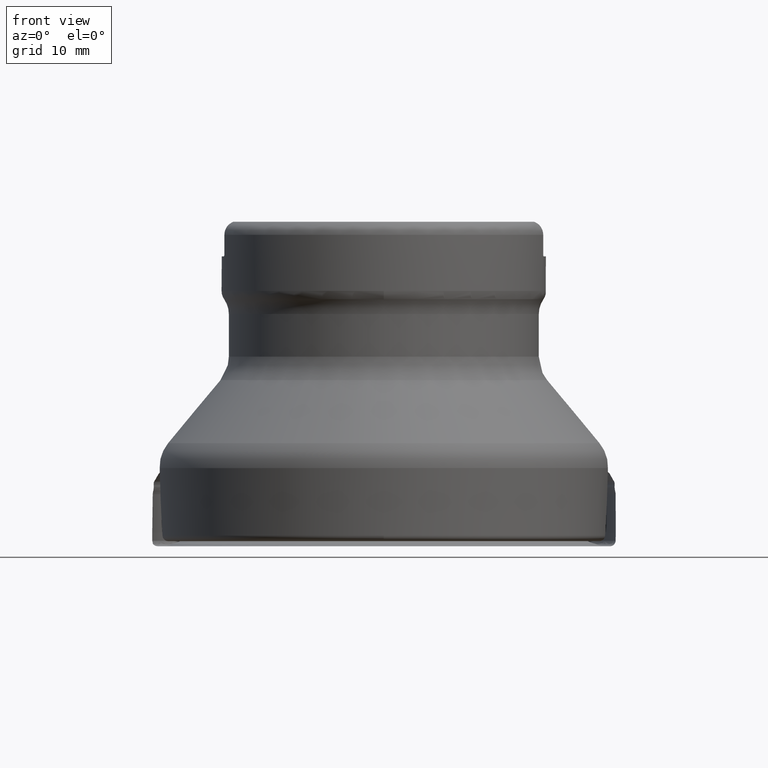
[diagram: clean part render]
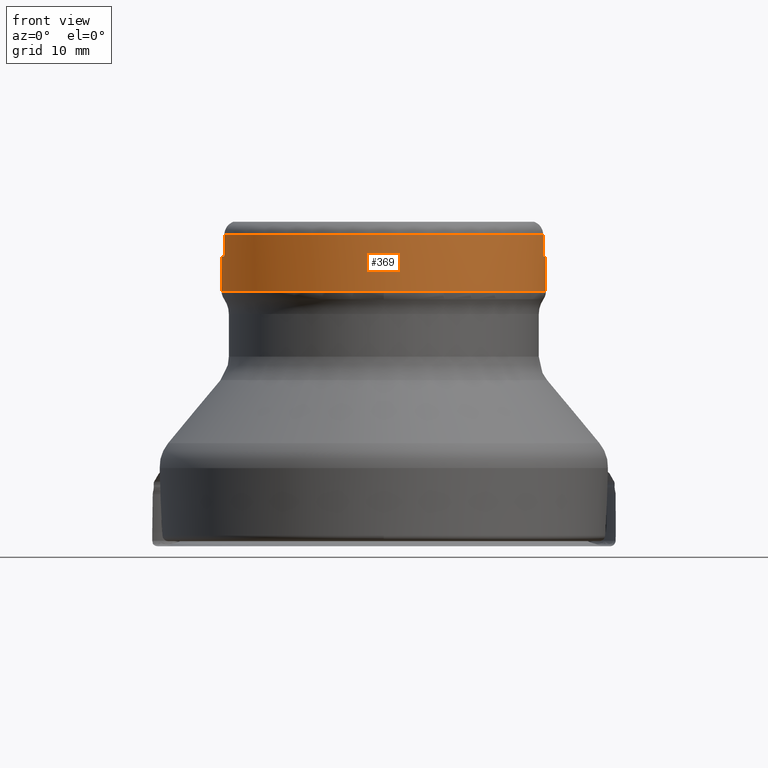
[diagram: same view with one face highlighted and labeled with its STEP entity id]
A machine part, front view. The second image highlights one B-rep face of the part: STEP entity #369.
In plain terms, the highlighted cylindrical surface (bore or boss wall) has radius 22.225 mm, axis along (0, -0, -1).
Its self-contained STEP definition (entity closure, byte-faithful):
#158=CYLINDRICAL_SURFACE('',#1218,22.225);
#168=FACE_BOUND('',#482,.T.);
#169=FACE_BOUND('',#483,.T.);
#315=LINE('',#1988,#342);
#316=LINE('',#2026,#343);
#317=LINE('',#2027,#344);
#318=LINE('',#2065,#345);
#342=VECTOR('',#1370,1.);
#343=VECTOR('',#1373,1.);
#344=VECTOR('',#1374,1.);
#345=VECTOR('',#1377,1.);
#369=ADVANCED_FACE('',(#168,#169),#158,.T.);
#482=EDGE_LOOP('',(#711));
#483=EDGE_LOOP('',(#712,#713,#714,#715,#716,#717,#718,#719,#720,#721,#722,
#723));
#605=CIRCLE('',#1196,22.225);
#607=CIRCLE('',#1199,22.225);
#612=CIRCLE('',#1215,22.225);
#613=CIRCLE('',#1216,22.225);
#614=CIRCLE('',#1217,22.225);
#711=ORIENTED_EDGE('',*,*,#1038,.T.);
#712=ORIENTED_EDGE('',*,*,#1039,.F.);
#713=ORIENTED_EDGE('',*,*,#1040,.T.);
#714=ORIENTED_EDGE('',*,*,#1041,.F.);
#715=ORIENTED_EDGE('',*,*,#1042,.T.);
#716=ORIENTED_EDGE('',*,*,#1043,.F.);
#717=ORIENTED_EDGE('',*,*,#1016,.T.);
#718=ORIENTED_EDGE('',*,*,#1044,.F.);
#719=ORIENTED_EDGE('',*,*,#1045,.T.);
#720=ORIENTED_EDGE('',*,*,#1046,.F.);
#721=ORIENTED_EDGE('',*,*,#1047,.T.);
#722=ORIENTED_EDGE('',*,*,#1048,.F.);
#723=ORIENTED_EDGE('',*,*,#1010,.T.);
#913=VERTEX_POINT('',#1876);
#914=VERTEX_POINT('',#1878);
#919=VERTEX_POINT('',#1919);
#920=VERTEX_POINT('',#1921);
#933=VERTEX_POINT('',#1987);
#934=VERTEX_POINT('',#1989);
#935=VERTEX_POINT('',#2006);
#936=VERTEX_POINT('',#2008);
#937=VERTEX_POINT('',#2025);
#938=VERTEX_POINT('',#2028);
#939=VERTEX_POINT('',#2045);
#940=VERTEX_POINT('',#2047);
#941=VERTEX_POINT('',#2064);
#1010=EDGE_CURVE('',#914,#913,#605,.T.);
#1016=EDGE_CURVE('',#920,#919,#607,.T.);
#1038=EDGE_CURVE('',#933,#933,#612,.T.);
#1039=EDGE_CURVE('',#934,#913,#315,.T.);
#1040=EDGE_CURVE('',#934,#935,#1161,.T.);
#1041=EDGE_CURVE('',#936,#935,#613,.T.);
#1042=EDGE_CURVE('',#936,#937,#1162,.T.);
#1043=EDGE_CURVE('',#920,#937,#316,.T.);
#1044=EDGE_CURVE('',#938,#919,#317,.T.);
#1045=EDGE_CURVE('',#938,#939,#1163,.T.);
#1046=EDGE_CURVE('',#940,#939,#614,.T.);
#1047=EDGE_CURVE('',#940,#941,#1164,.T.);
#1048=EDGE_CURVE('',#914,#941,#318,.T.);
#1161=B_SPLINE_CURVE_WITH_KNOTS('',3,(#1990,#1991,#1992,#1993,#1994,#1995,
#1996,#1997,#1998,#1999,#2000,#2001,#2002,#2003,#2004,#2005),
 .UNSPECIFIED.,.F.,.F.,(4,3,3,3,3,4),(0.,0.210472364967233,0.42083381576524,
0.632936760626975,0.84860430323185,1.),.UNSPECIFIED.);
#1162=B_SPLINE_CURVE_WITH_KNOTS('',3,(#2009,#2010,#2011,#2012,#2013,#2014,
#2015,#2016,#2017,#2018,#2019,#2020,#2021,#2022,#2023,#2024),
 .UNSPECIFIED.,.F.,.F.,(4,3,3,3,3,4),(0.,0.219175651858253,0.438420919236842,
0.656459471023132,0.871147037842588,1.),.UNSPECIFIED.);
#1163=B_SPLINE_CURVE_WITH_KNOTS('',3,(#2029,#2030,#2031,#2032,#2033,#2034,
#2035,#2036,#2037,#2038,#2039,#2040,#2041,#2042,#2043,#2044),
 .UNSPECIFIED.,.F.,.F.,(4,3,3,3,3,4),(0.,0.210472364967233,0.42083381576524,
0.632936760626974,0.848604303231861,1.),.UNSPECIFIED.);
#1164=B_SPLINE_CURVE_WITH_KNOTS('',3,(#2048,#2049,#2050,#2051,#2052,#2053,
#2054,#2055,#2056,#2057,#2058,#2059,#2060,#2061,#2062,#2063),
 .UNSPECIFIED.,.F.,.F.,(4,3,3,3,3,4),(0.,0.219175651858252,0.438420919236837,
0.656459471023132,0.871147037842588,1.),.UNSPECIFIED.);
#1196=AXIS2_PLACEMENT_3D('',#1877,#1322,#1323);
#1199=AXIS2_PLACEMENT_3D('',#1920,#1328,#1329);
#1215=AXIS2_PLACEMENT_3D('',#1986,#1368,#1369);
#1216=AXIS2_PLACEMENT_3D('',#2007,#1371,#1372);
#1217=AXIS2_PLACEMENT_3D('',#2046,#1375,#1376);
#1218=AXIS2_PLACEMENT_3D('',#2066,#1378,#1379);
#1322=DIRECTION('',(0.,-1.17145536458252E-15,-1.));
#1323=DIRECTION('',(0.,1.,-1.24884479710366E-15));
#1328=DIRECTION('',(0.,-1.17145536458252E-15,-1.));
#1329=DIRECTION('',(0.,1.,-1.24884479710366E-15));
#1368=DIRECTION('',(0.,1.17145536458252E-15,1.));
#1369=DIRECTION('',(0.,-1.,1.24884479710366E-15));
#1370=DIRECTION('',(0.,1.17145536458252E-15,1.));
#1371=DIRECTION('',(0.,1.17145536458252E-15,1.));
#1372=DIRECTION('',(0.,-1.,1.24884479710366E-15));
#1373=DIRECTION('',(0.,-1.17145536458252E-15,-1.));
#1374=DIRECTION('',(0.,1.17145536458252E-15,1.));
#1375=DIRECTION('',(0.,1.17145536458252E-15,1.));
#1376=DIRECTION('',(0.,-1.,1.24884479710366E-15));
#1377=DIRECTION('',(0.,-1.17145536458252E-15,-1.));
#1378=DIRECTION('',(0.,-1.17145536458252E-15,-1.));
#1379=DIRECTION('',(0.,1.,-1.17145536458252E-15));
#1876=CARTESIAN_POINT('',(-21.8293380568445,-4.17499999999995,42.65));
#1877=CARTESIAN_POINT('',(0.,4.99625712994447E-14,42.65));
#1878=CARTESIAN_POINT('',(21.8293380568445,-4.17499999999995,42.65));
#1919=CARTESIAN_POINT('',(21.8293380568445,4.17500000000005,42.65));
#1920=CARTESIAN_POINT('',(0.,4.99625712994447E-14,42.65));
#1921=CARTESIAN_POINT('',(-21.8293380568461,4.17500000000005,42.6500000000002));
#1986=CARTESIAN_POINT('',(0.,4.09756660999428E-14,34.9784271247462));
#1987=CARTESIAN_POINT('',(0.,-22.225,34.9784271247462));
#1988=CARTESIAN_POINT('',(-21.8293380568445,-4.175,5.27760477534295E-15));
#1989=CARTESIAN_POINT('',(-21.8293380568445,-4.17499999999995,40.1));
#1990=CARTESIAN_POINT('',(-21.8293380568445,-4.17499999999995,40.1));
#1991=CARTESIAN_POINT('',(-21.8293380568445,-4.17499999999995,40.0558065689365));
#1992=CARTESIAN_POINT('',(-21.8307835969848,-4.16746058414633,40.0110042944692));
#1993=CARTESIAN_POINT('',(-21.8335246985364,-4.15304999228268,39.9693163999003));
#1994=CARTESIAN_POINT('',(-21.8362649932676,-4.13864364205675,39.927640775816));
#1995=CARTESIAN_POINT('',(-21.8403708574228,-4.11698721111088,39.8879363501114));
#1996=CARTESIAN_POINT('',(-21.8454369819115,-4.08992763619782,39.8533817039252));
#1997=CARTESIAN_POINT('',(-21.8505454572765,-4.06264185351728,39.8185381940229));
#1998=CARTESIAN_POINT('',(-21.8567636399886,-4.02913407276355,39.7879824408914));
#1999=CARTESIAN_POINT('',(-21.8635161586172,-3.99215307595861,39.7640765837253));
#2000=CARTESIAN_POINT('',(-21.8703807036238,-3.95455855294867,39.7397741209754));
#2001=CARTESIAN_POINT('',(-21.8779802340845,-3.9123582400158,39.7216813922993));
#2002=CARTESIAN_POINT('',(-21.8856499668951,-3.86897279992278,39.7111952766817));
#2003=CARTESIAN_POINT('',(-21.8910719580784,-3.83830217821053,39.7037822900979));
#2004=CARTESIAN_POINT('',(-21.8966166250354,-3.80655098660398,39.7));
#2005=CARTESIAN_POINT('',(-21.9020546981328,-3.77499999999995,39.7));
#2006=CARTESIAN_POINT('',(-21.9020546981328,-3.77499999999995,39.7));
#2007=CARTESIAN_POINT('',(0.,4.65067779739262E-14,39.7));
#2008=CARTESIAN_POINT('',(-21.9020546981328,3.77500000000005,39.7));
#2009=CARTESIAN_POINT('',(-21.9020546981328,3.77500000000005,39.7));
#2010=CARTESIAN_POINT('',(-21.8942378183556,3.82035251084737,39.7));
#2011=CARTESIAN_POINT('',(-21.8861646129708,3.86630445453137,39.7079246413321));
#2012=CARTESIAN_POINT('',(-21.8785250084134,3.9090623500054,39.7231349229352));
#2013=CARTESIAN_POINT('',(-21.8708841158101,3.95182745450844,39.7383477690088));
#2014=CARTESIAN_POINT('',(-21.8634663771173,3.99258709417775,39.7612785864427));
#2015=CARTESIAN_POINT('',(-21.8569603388711,4.0278914763207,39.7900872684055));
#2016=CARTESIAN_POINT('',(-21.8504910361036,4.0629965169704,39.8187332859812));
#2017=CARTESIAN_POINT('',(-21.8447454840731,4.0936896898005,39.854008252674));
#2018=CARTESIAN_POINT('',(-21.8403011683012,4.11726485398984,39.8929860639393));
#2019=CARTESIAN_POINT('',(-21.8359245676766,4.14048081874465,39.9313699956602));
#2020=CARTESIAN_POINT('',(-21.8326910223772,4.15744091253673,39.9744319116725));
#2021=CARTESIAN_POINT('',(-21.8309401715052,4.16661448038576,40.0185254717582));
#2022=CARTESIAN_POINT('',(-21.82987941277,4.17217231651238,40.0452396995513));
#2023=CARTESIAN_POINT('',(-21.8293380568447,4.17500000000073,40.0726931378936));
#2024=CARTESIAN_POINT('',(-21.8293380568447,4.17500000000074,40.0999999999999));
#2025=CARTESIAN_POINT('',(-21.8293380568445,4.17500000000005,40.1));
#2026=CARTESIAN_POINT('',(-21.8293380568445,4.17500000000001,-4.50404751892114E-15));
#2027=CARTESIAN_POINT('',(21.8293380568445,4.17500000000001,-4.50404751892114E-15));
#2028=CARTESIAN_POINT('',(21.8293380568445,4.17500000000005,40.1));
#2029=CARTESIAN_POINT('',(21.8293380568445,4.17500000000005,40.1));
#2030=CARTESIAN_POINT('',(21.8293380568445,4.17500000000005,40.0558065689365));
#2031=CARTESIAN_POINT('',(21.8307835969848,4.16746058414643,40.0110042944691));
#2032=CARTESIAN_POINT('',(21.8335246985364,4.15304999228278,39.9693163999003));
#2033=CARTESIAN_POINT('',(21.8362649932676,4.13864364205685,39.927640775816));
#2034=CARTESIAN_POINT('',(21.8403708574227,4.11698721111098,39.8879363501113));
#2035=CARTESIAN_POINT('',(21.8454369819115,4.08992763619792,39.8533817039252));
#2036=CARTESIAN_POINT('',(21.8505454572765,4.06264185351738,39.8185381940228));
#2037=CARTESIAN_POINT('',(21.8567636399886,4.02913407276365,39.7879824408913));
#2038=CARTESIAN_POINT('',(21.8635161586172,3.99215307595871,39.7640765837252));
#2039=CARTESIAN_POINT('',(21.8703807036238,3.95455855294877,39.7397741209754));
#2040=CARTESIAN_POINT('',(21.8779802340845,3.9123582400159,39.7216813922993));
#2041=CARTESIAN_POINT('',(21.8856499668951,3.86897279992287,39.7111952766816));
#2042=CARTESIAN_POINT('',(21.8910719580784,3.83830217821063,39.7037822900978));
#2043=CARTESIAN_POINT('',(21.8966166250354,3.80655098660407,39.7));
#2044=CARTESIAN_POINT('',(21.9020546981328,3.77500000000005,39.7));
#2045=CARTESIAN_POINT('',(21.9020546981328,3.77500000000005,39.7));
#2046=CARTESIAN_POINT('',(0.,4.65067779739262E-14,39.7));
#2047=CARTESIAN_POINT('',(21.9020546981328,-3.77499999999995,39.7));
#2048=CARTESIAN_POINT('',(21.9020546981328,-3.77499999999995,39.7));
#2049=CARTESIAN_POINT('',(21.8942378183556,-3.82035251084727,39.7));
#2050=CARTESIAN_POINT('',(21.8861646129708,-3.86630445453127,39.7079246413321));
#2051=CARTESIAN_POINT('',(21.8785250084134,-3.9090623500053,39.7231349229352));
#2052=CARTESIAN_POINT('',(21.8708841158101,-3.95182745450833,39.7383477690088));
#2053=CARTESIAN_POINT('',(21.8634663771173,-3.99258709417765,39.7612785864427));
#2054=CARTESIAN_POINT('',(21.8569603388711,-4.0278914763206,39.7900872684055));
#2055=CARTESIAN_POINT('',(21.8504910361036,-4.0629965169703,39.8187332859812));
#2056=CARTESIAN_POINT('',(21.8447454840731,-4.0936896898004,39.854008252674));
#2057=CARTESIAN_POINT('',(21.8403011683012,-4.11726485398974,39.8929860639393));
#2058=CARTESIAN_POINT('',(21.8359245676766,-4.14048081874456,39.9313699956602));
#2059=CARTESIAN_POINT('',(21.8326910223772,-4.15744091253663,39.9744319116725));
#2060=CARTESIAN_POINT('',(21.8309401715052,-4.16661448038566,40.0185254717582));
#2061=CARTESIAN_POINT('',(21.82987941277,-4.17217231651228,40.0452396995513));
#2062=CARTESIAN_POINT('',(21.8293380568447,-4.17500000000063,40.0726931378936));
#2063=CARTESIAN_POINT('',(21.8293380568447,-4.17500000000064,40.0999999999999));
#2064=CARTESIAN_POINT('',(21.8293380568445,-4.17499999999995,40.1));
#2065=CARTESIAN_POINT('',(21.8293380568445,-4.175,5.27760477534295E-15));
#2066=CARTESIAN_POINT('',(0.,0.,0.));